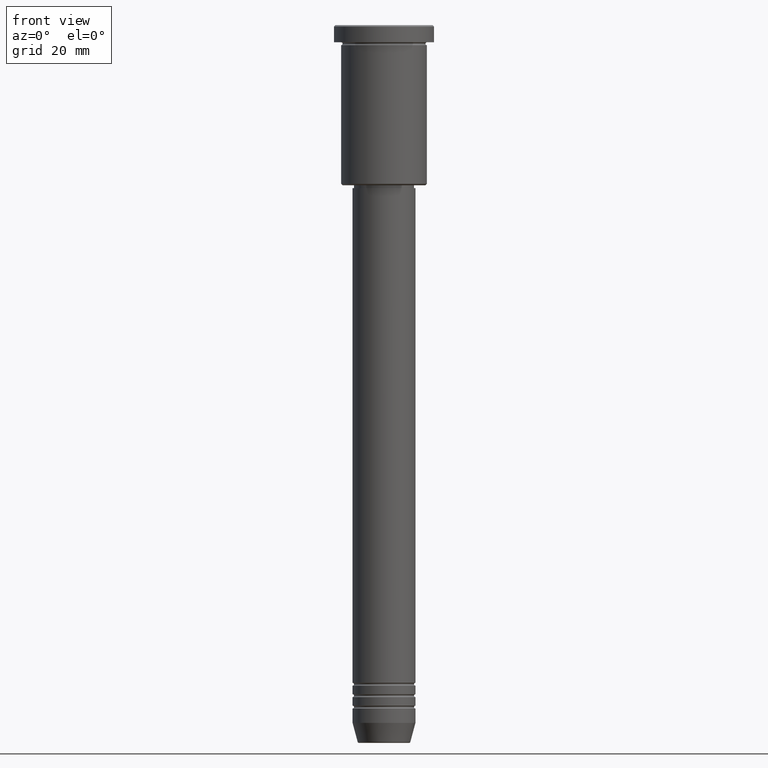
[diagram: clean part render]
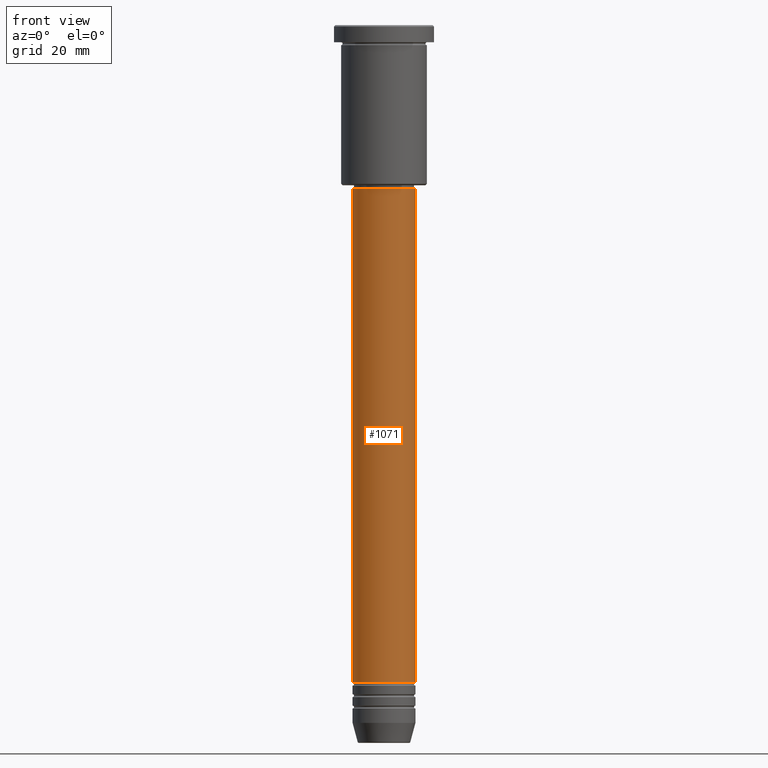
[diagram: same view with one face highlighted and labeled with its STEP entity id]
A machine part, front view. The second image highlights one B-rep face of the part: STEP entity #1071.
In plain terms, the highlighted cylindrical surface (edge-blend (fillet) strip) has radius 11 mm, axis along (-0, -0, 1).
Its self-contained STEP definition (entity closure, byte-faithful):
#8 = VERTEX_POINT ( 'NONE', #174 ) ;
#21 = VERTEX_POINT ( 'NONE', #807 ) ;
#25 = CARTESIAN_POINT ( 'NONE',  ( 11.00000000000000000, 0.000000000000000000, 0.000000000000000000 ) ) ;
#33 = EDGE_CURVE ( 'NONE', #1130, #134, #672, .T. ) ;
#87 = AXIS2_PLACEMENT_3D ( 'NONE', #840, #574, #760 ) ;
#94 = DIRECTION ( 'NONE',  ( -0.000000000000000000, -0.000000000000000000, 1.000000000000000000 ) ) ;
#95 = CARTESIAN_POINT ( 'NONE',  ( -11.00000000000000000, 1.347111479062088405E-15, -57.00000000000002842 ) ) ;
#121 = AXIS2_PLACEMENT_3D ( 'NONE', #243, #1072, #224 ) ;
#134 = VERTEX_POINT ( 'NONE', #903 ) ;
#159 = DIRECTION ( 'NONE',  ( -0.000000000000000000, -0.000000000000000000, 1.000000000000000000 ) ) ;
#162 = CARTESIAN_POINT ( 'NONE',  ( -11.00000000000000000, 1.347111479062088405E-15, 0.000000000000000000 ) ) ;
#166 = CARTESIAN_POINT ( 'NONE',  ( 0.000000000000000000, 0.000000000000000000, -57.00000000000002842 ) ) ;
#174 = CARTESIAN_POINT ( 'NONE',  ( -11.00000000000000000, 1.347111479062088405E-15, -229.9999999999998863 ) ) ;
#182 = LINE ( 'NONE', #25, #542 ) ;
#212 = EDGE_CURVE ( 'NONE', #21, #134, #182, .T. ) ;
#224 = DIRECTION ( 'NONE',  ( 1.000000000000000000, 0.000000000000000000, 0.000000000000000000 ) ) ;
#243 = CARTESIAN_POINT ( 'NONE',  ( 0.000000000000000000, 0.000000000000000000, 0.000000000000000000 ) ) ;
#391 = ORIENTED_EDGE ( 'NONE', *, *, #33, .F. ) ;
#426 = FACE_OUTER_BOUND ( 'NONE', #702, .T. ) ;
#524 = ORIENTED_EDGE ( 'NONE', *, *, #1009, .T. ) ;
#532 = DIRECTION ( 'NONE',  ( -0.000000000000000000, -0.000000000000000000, 1.000000000000000000 ) ) ;
#542 = VECTOR ( 'NONE', #94, 1000.000000000000000 ) ;
#574 = DIRECTION ( 'NONE',  ( -0.000000000000000000, -0.000000000000000000, 1.000000000000000000 ) ) ;
#605 = CIRCLE ( 'NONE', #87, 11.00000000000000000 ) ;
#672 = CIRCLE ( 'NONE', #790, 11.00000000000000000 ) ;
#702 = EDGE_LOOP ( 'NONE', ( #1136, #524, #1066, #391 ) ) ;
#709 = LINE ( 'NONE', #162, #906 ) ;
#760 = DIRECTION ( 'NONE',  ( 1.000000000000000000, 0.000000000000000000, 0.000000000000000000 ) ) ;
#790 = AXIS2_PLACEMENT_3D ( 'NONE', #166, #159, #975 ) ;
#807 = CARTESIAN_POINT ( 'NONE',  ( 11.00000000000000000, 0.000000000000000000, -229.9999999999998863 ) ) ;
#840 = CARTESIAN_POINT ( 'NONE',  ( 0.000000000000000000, 0.000000000000000000, -229.9999999999998863 ) ) ;
#903 = CARTESIAN_POINT ( 'NONE',  ( 11.00000000000000000, 0.000000000000000000, -57.00000000000002842 ) ) ;
#906 = VECTOR ( 'NONE', #532, 1000.000000000000000 ) ;
#911 = EDGE_CURVE ( 'NONE', #8, #1130, #709, .T. ) ;
#975 = DIRECTION ( 'NONE',  ( 1.000000000000000000, 0.000000000000000000, 0.000000000000000000 ) ) ;
#1009 = EDGE_CURVE ( 'NONE', #8, #21, #605, .T. ) ;
#1066 = ORIENTED_EDGE ( 'NONE', *, *, #212, .T. ) ;
#1067 = CYLINDRICAL_SURFACE ( 'NONE', #121, 11.00000000000000000 ) ;
#1071 = ADVANCED_FACE ( 'NONE', ( #426 ), #1067, .T. ) ;
#1072 = DIRECTION ( 'NONE',  ( -0.000000000000000000, -0.000000000000000000, 1.000000000000000000 ) ) ;
#1130 = VERTEX_POINT ( 'NONE', #95 ) ;
#1136 = ORIENTED_EDGE ( 'NONE', *, *, #911, .F. ) ;